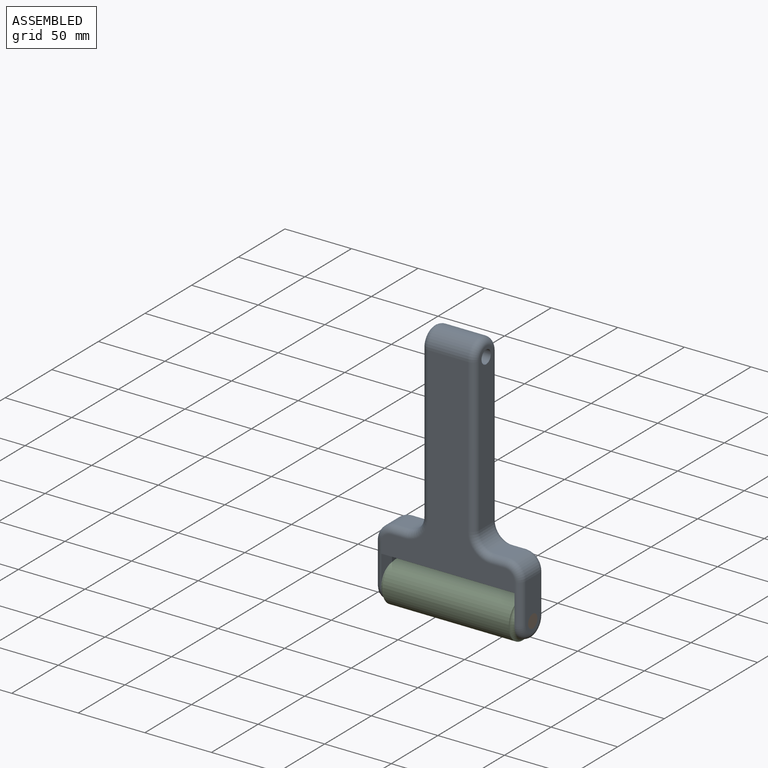
[diagram: assembled view]
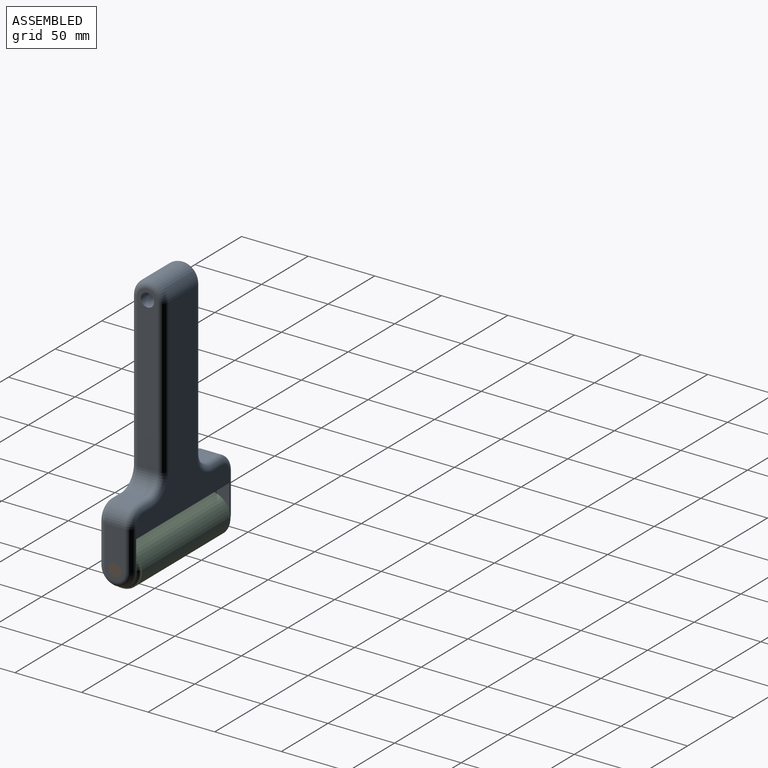
[diagram: assembled view, second angle]
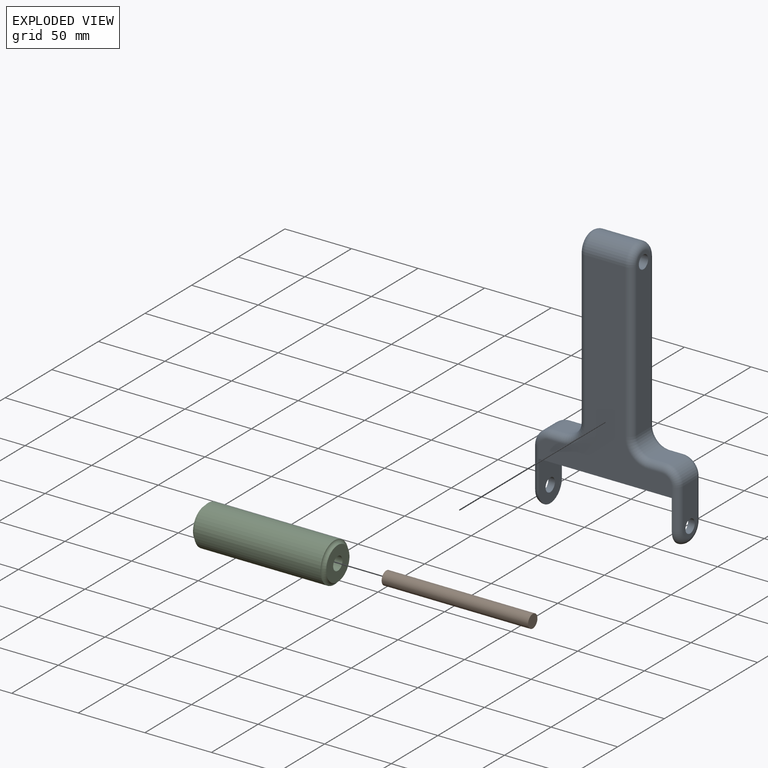
[diagram: exploded view]
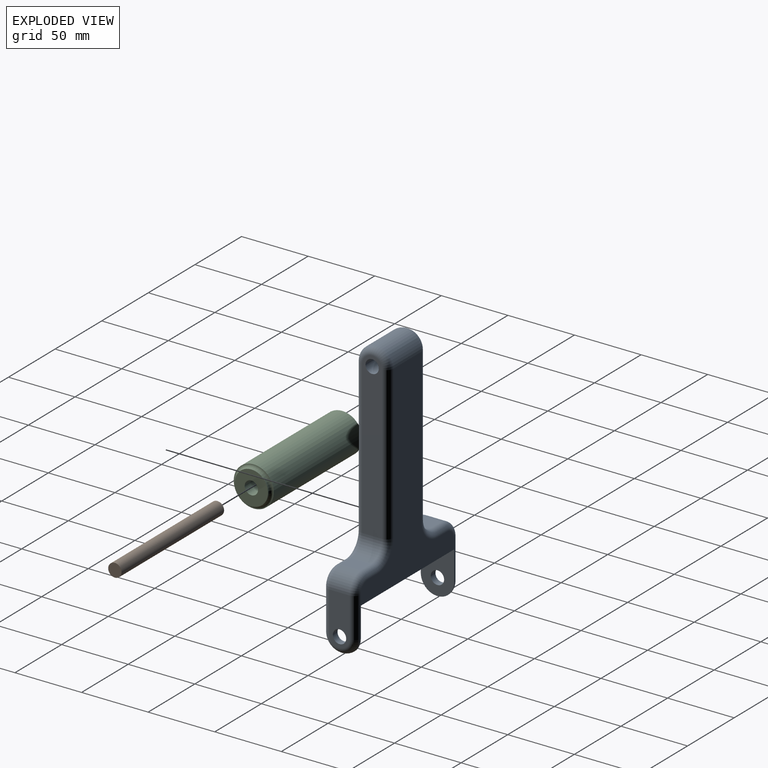
[diagram: exploded view, second angle]
ASSEMBLY  parts=3 mates=2
PART A: 43 faces, bbox 112.1x27.1x197.1 mm
  f0: plane 122.5x15mm, normal (-1,0,0), area 1734.8mm2, adj f11,f28,f29,f31,f42
  f1: plane 15x10mm, normal (0,0,1), area 150mm2, adj f11,f14,f32,f35
  f2: plane 37.5x15mm, normal (-1,0,0), area 459.8mm2, adj f14,f36,f38,f39,f41
  f3: plane 35x25mm, normal (1,0,0), area 729.4mm2, adj f4,f36,f38,f39,f41
  f4: plane 100x25mm, normal (0,0,-1), area 2500mm2, adj f3,f5,f9,f10
  f5: plane 35x25mm, normal (-1,0,0), area 729.4mm2, adj f4,f24,f26,f27,f40
  f6: plane 37.5x15mm, normal (1,0,0), area 459.8mm2, adj f13,f24,f26,f27,f40
  f7: plane 15x10mm, normal (0,0,1), area 150mm2, adj f12,f13,f20,f23
  f8: plane 122.5x15mm, normal (1,0,0), area 1734.8mm2, adj f12,f16,f17,f19,f42
  f9: plane 147.5x100mm, normal (0,-1,0), area 5582.3mm2, adj f4,f15,f19,f21,f23,f25,f27,f31
  f10: plane 147.5x100mm, normal (0,1,0), area 5582.3mm2, adj f4,f15,f16,f18,f20,f22,f24,f28
  f11: cylinder r=12.5mm len=15mm, axis (0,1,0), area 294.5mm2, adj f0,f1,f30,f33
  f12: cylinder r=12.5mm len=15mm, axis (0,-1,0), area 294.5mm2, adj f7,f8,f18,f21
  f13: cylinder r=12.5mm len=15mm, axis (0,1,0), area 294.5mm2, adj f6,f7,f22,f25
  f14: cylinder r=12.5mm len=15mm, axis (0,-1,0), area 294.5mm2, adj f1,f2,f34,f37
  f15: cylinder r=12.5mm len=30mm, axis (1,0,0), area 1178.1mm2, adj f9,f10,f17,f29
  f16: cylinder r=5mm len=115mm, axis (0,0,1), area 903.2mm2, adj f8,f10,f17,f18
  f17: torus R=7.5mm, axis (1,0,0), area 263.6mm2, adj f8,f15,f16,f19
  f18: torus R=17.5mm, axis (0,-1,0), area 176.6mm2, adj f10,f12,f16,f20
  f19: cylinder r=5mm len=115mm, axis (0,0,-1), area 903.2mm2, adj f8,f9,f17,f21
  f20: cylinder r=5mm len=10mm, axis (-1,0,0), area 78.5mm2, adj f7,f10,f18,f22
  f21: torus R=17.5mm, axis (0,-1,0), area 176.6mm2, adj f9,f12,f19,f23
  f22: torus R=7.5mm, axis (0,-1,0), area 131.8mm2, adj f10,f13,f20,f24
  f23: cylinder r=5mm len=10mm, axis (1,0,0), area 78.5mm2, adj f7,f9,f21,f25
  f24: cylinder r=5mm len=30mm, axis (0,0,1), area 235.6mm2, adj f5,f6,f10,f22,f26
  f25: torus R=7.5mm, axis (0,-1,0), area 131.8mm2, adj f9,f13,f23,f27
  f26: torus R=7.5mm, axis (1,0,0), area 263.6mm2, adj f5,f6,f24,f27
  f27: cylinder r=5mm len=30mm, axis (0,0,-1), area 235.6mm2, adj f5,f6,f9,f25,f26
  f28: cylinder r=5mm len=115mm, axis (0,0,-1), area 903.2mm2, adj f0,f10,f29,f30
  f29: torus R=7.5mm, axis (1,0,0), area 263.6mm2, adj f0,f15,f28,f31
  f30: torus R=17.5mm, axis (0,-1,0), area 176.6mm2, adj f10,f11,f28,f32
  f31: cylinder r=5mm len=115mm, axis (0,0,1), area 903.2mm2, adj f0,f9,f29,f33
  f32: cylinder r=5mm len=10mm, axis (-1,0,0), area 78.5mm2, adj f1,f10,f30,f34
  f33: torus R=17.5mm, axis (0,-1,0), area 176.6mm2, adj f9,f11,f31,f35
  f34: torus R=7.5mm, axis (0,-1,0), area 131.8mm2, adj f10,f14,f32,f36
  f35: cylinder r=5mm len=10mm, axis (1,0,0), area 78.5mm2, adj f1,f9,f33,f37
  f36: cylinder r=5mm len=30mm, axis (0,0,-1), area 235.6mm2, adj f2,f3,f10,f34,f38
  f37: torus R=7.5mm, axis (0,-1,0), area 131.8mm2, adj f9,f14,f35,f39
  f38: torus R=7.5mm, axis (1,0,0), area 263.6mm2, adj f2,f3,f36,f39
  f39: cylinder r=5mm len=30mm, axis (0,0,1), area 235.6mm2, adj f2,f3,f9,f37,f38
  f40: cylinder r=5mm len=10mm, axis (1,0,0), area 157.1mm2, adj f5,f6
  f41: cylinder r=5mm len=10mm, axis (1,0,0), area 157.1mm2, adj f2,f3
  f42: cylinder r=5mm len=40mm, axis (-1,0,0), area 1256.6mm2, adj f0,f8
PART B: 3 faces, bbox 110x10x10 mm
  f0: cylinder r=5mm len=110mm, axis (-1,0,0), area 3455.8mm2, adj f1,f2
  f1: plane 10x10mm, normal (1,0,0), area 78.5mm2, adj f0
  f2: plane 10x10mm, normal (-1,0,0), area 78.5mm2, adj f0
PART C: 6 faces, bbox 101.8x36.3x36.3 mm
  f0: plane 25x25mm, normal (1,0,0), area 412.3mm2, adj f1,f5
  f1: torus R=15mm, axis (-1,0,0), area 330.8mm2, adj f0,f2
  f2: cylinder r=15mm len=95mm, axis (-1,0,0), area 8953.5mm2, adj f1,f3
  f3: torus R=15mm, axis (-1,0,0), area 330.8mm2, adj f2,f4
  f4: plane 25x25mm, normal (-1,0,0), area 412.3mm2, adj f3,f5
  f5: cylinder r=5mm len=100mm, axis (1,0,0), area 3141.6mm2, adj f0,f4
PLACE A at identity fixed
PLACE B t=(-35,-12.5,-182.5)mm
PLACE C t=(-30,-12.5,-167.5)mm
MATE revolute C.f1 <-> A.f26  axis (1,0,0) through (70,-12.5,-182.5)mm
MATE revolute B.f0 <-> A.f26  axis (1,0,0) through (75,-12.5,-182.5)mm
